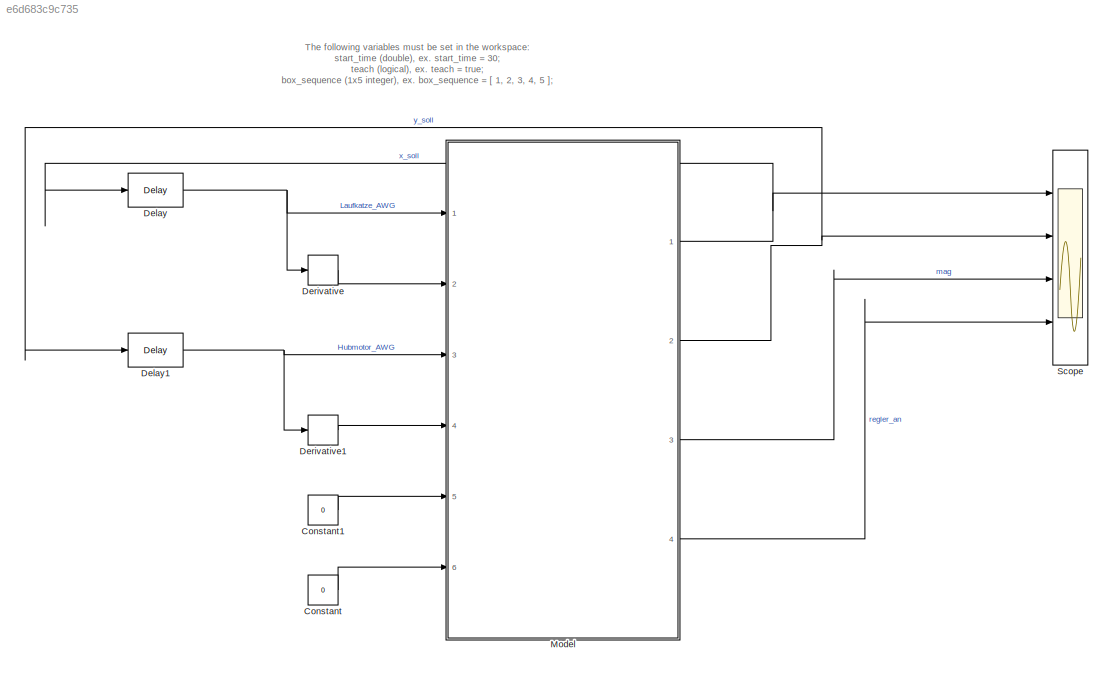
MODEL slx_e6d683c9c735
KIND model
CONFIG AbsTol = auto
CONFIG EnableMultiTasking = off
CONFIG FixedStep = 0.001
CONFIG MaxStep = auto
CONFIG MinStep = auto
CONFIG RelTol = 1e-3
CONFIG SampleTimeConstraint = Unconstrained
CONFIG Solver = FixedStepAuto
CONFIG SolverName = FixedStepAuto
CONFIG StartTime = 0.0
CONFIG StopTime = 80.0
WORKSPACE source: MAT-file member
WORKSPACE MCOS: class17 (value not decoded)
BLOCK [Constant] Constant
  OutDataTypeStr = double
  Value = 0
BLOCK [Constant] Constant1
  OutDataTypeStr = double
  Value = 0
BLOCK [Delay] Delay
  DelayLength = 1000
  InputPortMap = u0
  Ports = [1, 1]
BLOCK [Delay] Delay1
  DelayLength = 1000
  InputPortMap = u0
  Ports = [1, 1]
BLOCK [Derivative] Derivative
BLOCK [Derivative] Derivative1
BLOCK [ModelReference] Model
  ModelNameDialog = Automatisierung_subsystem.slx
  ModelReferenceVersion = 1.100
  Ports = [6, 4]
  Variant = off
BLOCK [Scope] Scope
  NumInputPorts = 4
  Ports = [4]
  ScopeSpecificationString = Simulink.scopes.TimeScopeBlockCfg('CurrentConfiguration', extmgr.ConfigurationSet(extmgr.Configuration('Core','General UI',true),extmgr.Configuration('Core','Source UI',true),extmgr.Configuration('Sources','WiredSimulink',true),extmgr.Configuration('Visuals','Time Domain',true,'SerializedDisplays',{struct('MinYLimReal','-0.10994','MaxYLimReal','0.98947','YLabelReal','','MinYLimMag','0.00000','MaxY...<+3469ch>
ANNOTATION (root): The following variables must be set in the workspace: start_time (double), ex. start_time = 30; teach (logical), ex. teach = true; box_sequence (1x5 integer), ex. box_sequence = [ 1, 2, 3, 4, 5 ];
LINE Constant1:1 -> Model:5
LINE Constant:1 -> Model:6
NET Delay1:1 -> Derivative1:1, Model:3
NET Delay:1 -> Derivative:1, Model:1
LINE Derivative1:1 -> Model:4
LINE Derivative:1 -> Model:2
NET Model:1 -> Delay:1, Scope:1
NET Model:2 -> Delay1:1, Scope:2
LINE Model:3 -> Scope:3
LINE Model:4 -> Scope:4
note: NET lines group one-source signal fan-out (src -> all destinations, sorted); 1:1 wires keep LINE
